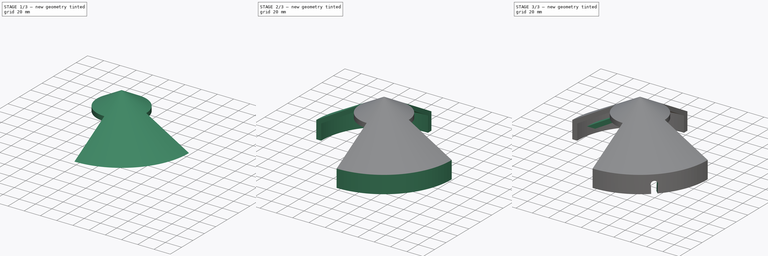
[diagram: build sequence overview — one tinted view per stage of 3, left to right]
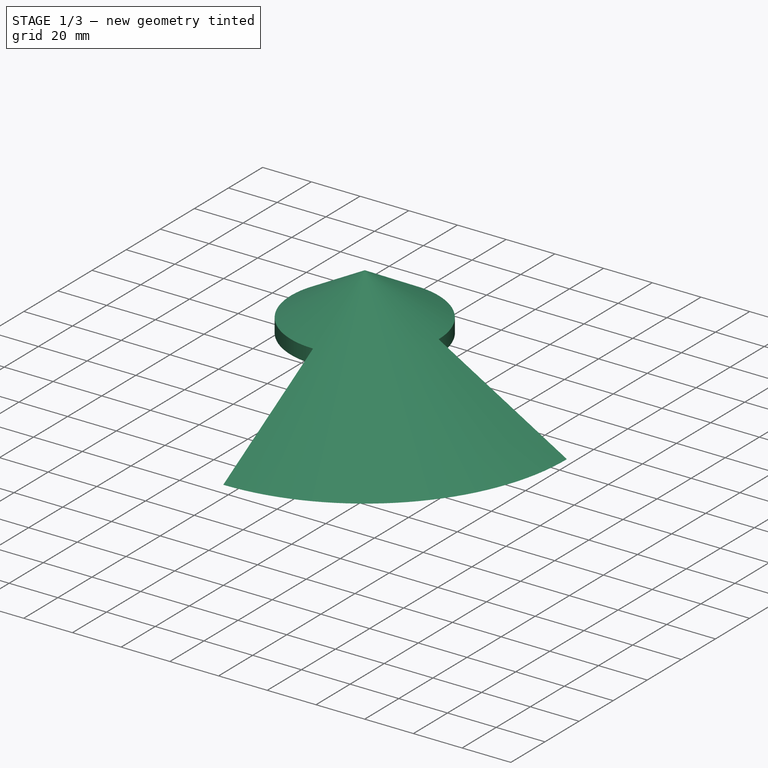
[diagram: stage 1 of 3 — iso view after this stage's code; geometry added in this stage tinted green]
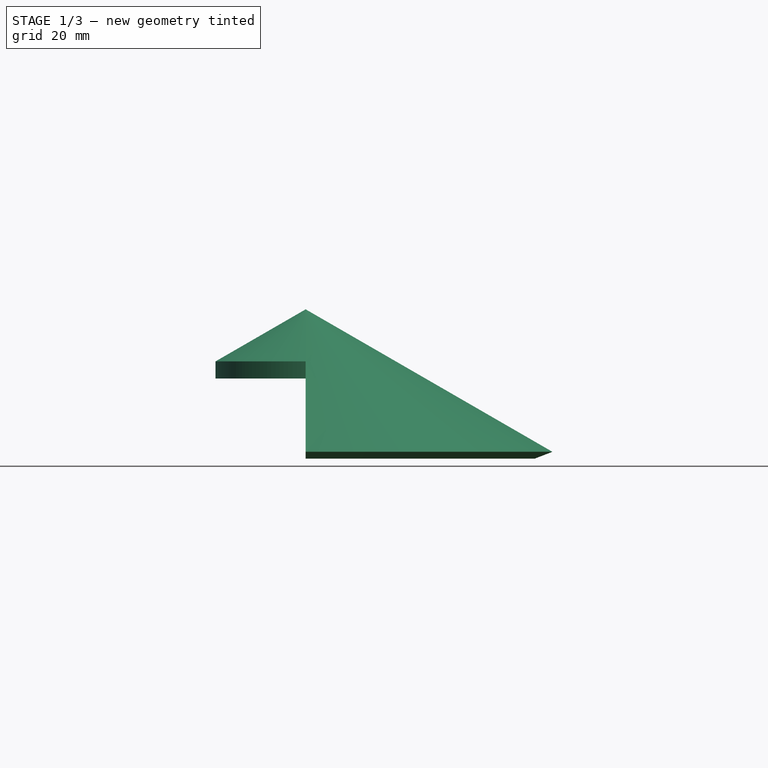
[diagram: stage 1 of 3 — front view after this stage's code; geometry added in this stage tinted green]
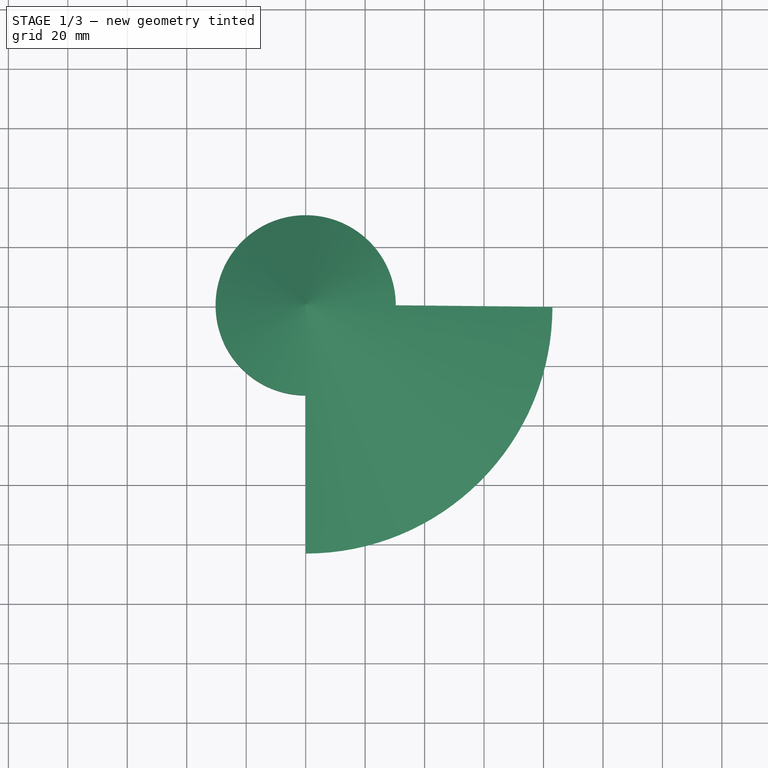
[diagram: stage 1 of 3 — top view after this stage's code; geometry added in this stage tinted green]
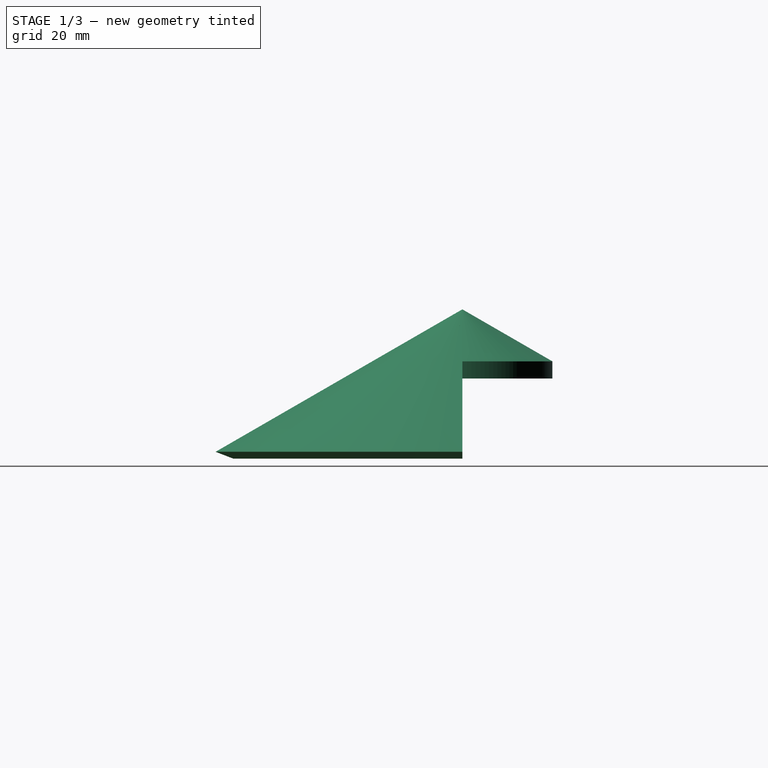
[diagram: stage 1 of 3 — right view after this stage's code; geometry added in this stage tinted green]
FCSTD DOCUMENT  (FreeCAD 1.0R39285 (Git))
Label: 2_Чехол для бура
License: All rights reserved
LicenseURL: https://en.wikipedia.org/wiki/All_rights_reserved
objects: Sketcher::SketchObject×5, PartDesign::Revolution×2, PartDesign::PolarPattern×2, PartDesign::Plane×2, PartDesign::SubShapeBinder×1, PartDesign::Pad×1, PartDesign::Groove×1, PartDesign::Pocket×1, PartDesign::Body×1
note: 33 computed .brp shape members not serialized (recipe doc carries the construction recipe); baked Part::Feature solids carry a one-line shape summary decoded from their .brp

FEATURE [PartDesign::SubShapeBinder] Binder
  BindCopyOnChange = 0
  BindMode = 0
  ClaimChildren = false
  Context = -> Body [Binder.]
  Fuse = false
  MakeFace = true
  OffsetFill = false
  OffsetIntersection = false
  OffsetJoinType = 0
  OffsetOpenResult = false
  PartialLoad = false
  Refine = true
  Relative = true
  Support = -> [PolarPattern[Face1,Face18]]
  _Version = 2
FEATURE [Sketcher::SketchObject] Sketch
  ArcFitTolerance = 1e-06
  AttachmentSupport = -> [XZ_Plane]
  FullyConstrained = false
  MakeInternals = false
  MapMode = 5
  Placement = pos=(0,0,0) rot=(1,0,0;1.5708rad)
  sketch-geometry (5):
    g0: LineSegment StartX=77 StartY=0 StartZ=0 EndX=83 EndY=2.3094 EndZ=0
    g1: LineSegment StartX=0 StartY=44.456 StartZ=0 EndX=77 EndY=0 EndZ=0
    g2: LineSegment StartX=83 StartY=2.3094 StartZ=0 EndX=0 EndY=50.2295 EndZ=0
    g3: LineSegment [constr] StartX=83 StartY=2.3094 StartZ=0 EndX=83 EndY=-59.0907 EndZ=0
    g4: LineSegment StartX=0 StartY=44.456 StartZ=0 EndX=0 EndY=50.2295 EndZ=0
  constraints (14):
    c: PointOnObject(g0,g-1)
    c: Coincident(g1,g0)
    c: Coincident(g0,g2)
    c: Coincident(g3,g0)
    c: Vertical(g3)
    c: Angle(g2,g3) = 2.0944
    c: Parallel(g1,g2)
    c: DistanceX(g-1,g0) = 77
    c: Distance(g2,g1) = 5
    c: Coincident(g4,g1)
    c: Coincident(g4,g2)
    c: Vertical(g4)
    c: DistanceX(g0,g0) = 6
    c: PointOnObject(g2,g-2)
FEATURE [Sketcher::SketchObject] Sketch001
  ArcFitTolerance = 1e-06
  AttachmentSupport = -> [XZ_Plane]
  ExternalGeometry = -> [Sketch]
  FullyConstrained = true
  MakeInternals = false
  MapMode = 5
  Placement = pos=(0,0,0) rot=(1,0,0;1.5708rad)
  sketch-geometry (3):
    g0: LineSegment StartX=0 StartY=44.456 StartZ=0 EndX=30.3109 EndY=26.956 EndZ=0
    g1: LineSegment StartX=30.3109 StartY=26.956 StartZ=0 EndX=30.3109 EndY=32.7295 EndZ=0
    g2: LineSegment StartX=30.3109 StartY=32.7295 StartZ=0 EndX=0 EndY=50.2295 EndZ=0
  constraints (8):
    c: Coincident(g-3,g0)
    c: Coincident(g0,g1)
    c: Vertical(g1)
    c: Coincident(g1,g2)
    c: Coincident(g2,g-3)
    c: PointOnObject(g1,g-4)
    c: PointOnObject(g0,g-5)
    c: Distance(g2,g2) = 35
FEATURE [PartDesign::Revolution] Revolution
  Angle = 360
  Angle2 = 60
  Axis = (0,2e-16,1)
  Base = (0,0,0)
  Midplane = true
  Placement = pos=(0,0,0) rot=(1,0,0;1.5708rad)
  Profile = -> Sketch001
  ReferenceAxis = -> Sketch001 [V_Axis]
  Refine = true
  Suppressed = false
  Type = 0
FEATURE [PartDesign::Revolution] Revolution001
  Angle = 90
  Angle2 = 60
  Axis = (0,2e-16,1)
  Base = (0,0,0)
  BaseFeature = -> Revolution
  Placement = pos=(0,0,0) rot=(1,0,0;1.5708rad)
  Profile = -> Sketch
  ReferenceAxis = -> Sketch [V_Axis]
  Refine = true
  Reversed = true
  Suppressed = false
  Type = 0
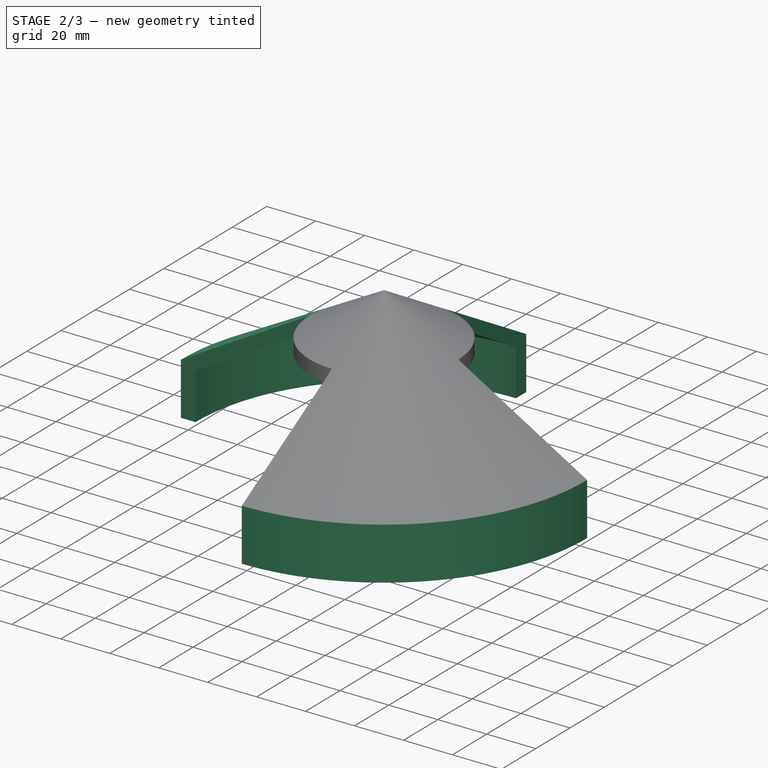
[diagram: stage 2 of 3 — iso view after this stage's code; geometry added in this stage tinted green]
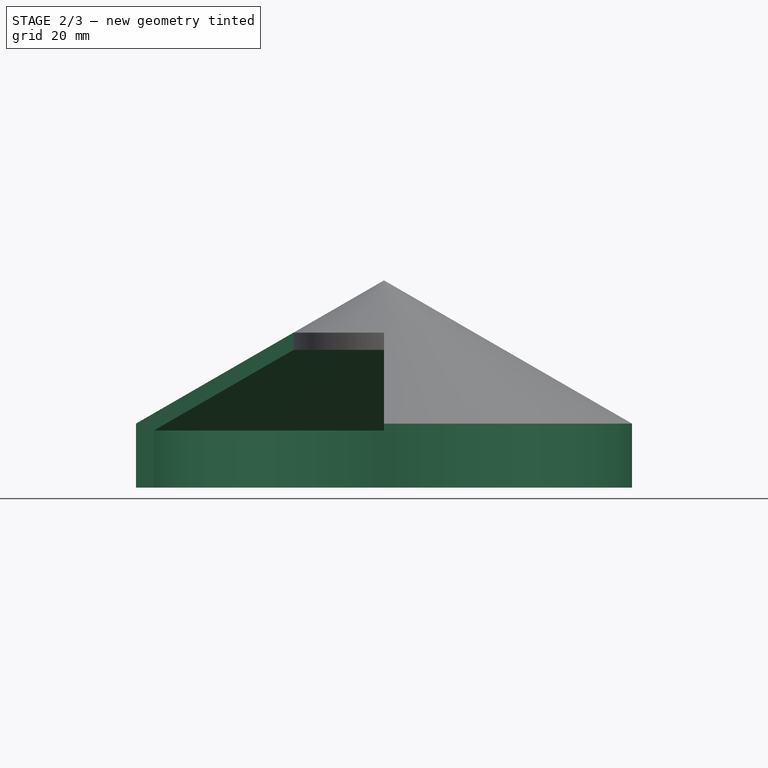
[diagram: stage 2 of 3 — front view after this stage's code; geometry added in this stage tinted green]
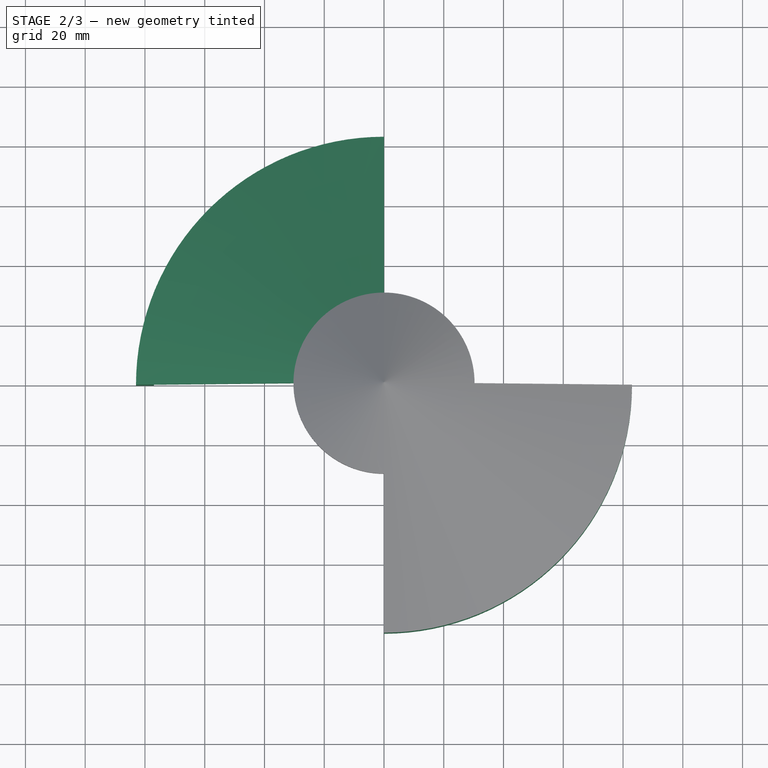
[diagram: stage 2 of 3 — top view after this stage's code; geometry added in this stage tinted green]
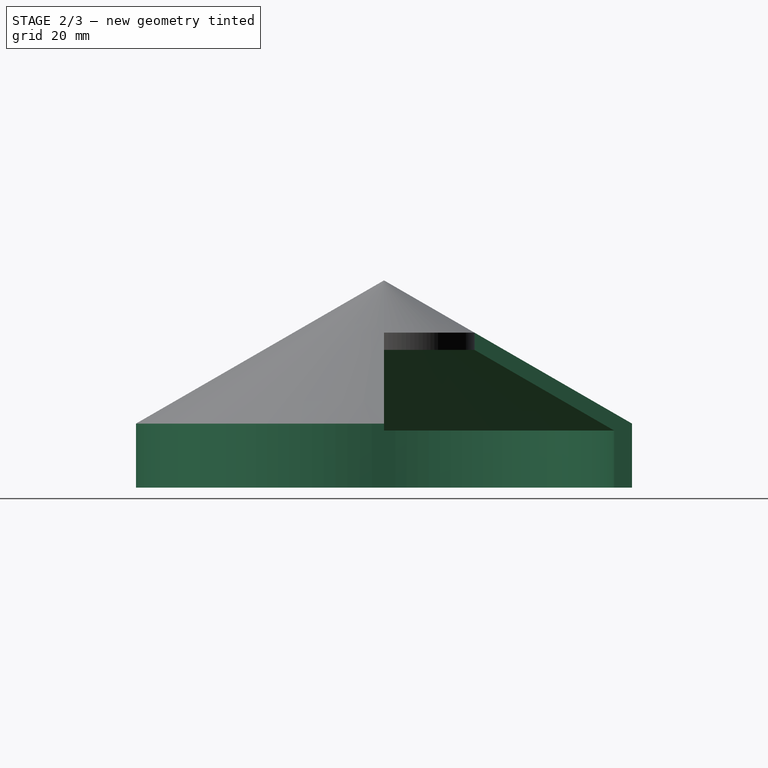
[diagram: stage 2 of 3 — right view after this stage's code; geometry added in this stage tinted green]
FEATURE [PartDesign::PolarPattern] PolarPattern
  Angle = 360
  Axis = -> Y_Axis
  BaseFeature = -> Revolution001
  Mode = 0
  Occurrences = 2
  Offset = 120
  Originals = -> [Revolution001]
  Placement = pos=(0,0,0) rot=(1,0,0;1.5708rad)
  Refine = true
  Suppressed = false
  TransformMode = 0
FEATURE [PartDesign::Pad] Pad
  BaseFeature = -> PolarPattern
  Direction = (1e-16,1e-16,-1)
  Length = 20
  Length2 = 10
  Placement = pos=(0,0,0) rot=(1,0,0;1.5708rad)
  Profile = -> PolarPattern [Face1,Face18]
  ReferenceAxis = -> Y_Axis
  Refine = true
  Suppressed = false
  Type = 0
FEATURE [PartDesign::Plane] DatumPlane
  AttachmentOffset = pos=(0,0,-167) rot=(0,-1,0;0.785398rad)
  AttachmentSupport = -> [YZ_Plane]
  Length = 262.085
  MapMode = 5
  Placement = pos=(-167,0,0) rot=(0.862856,0.357407,0.357407;1.71777rad)
  ResizeMode = 0
  Width = 101.848
FEATURE [Sketcher::SketchObject] Sketch002
  ArcFitTolerance = 1e-06
  AttachmentSupport = -> [DatumPlane]
  FullyConstrained = true
  MakeInternals = false
  MapMode = 5
  Placement = pos=(-167,0,0) rot=(0.862856,0.357407,0.357407;1.71777rad)
FEATURE [Sketcher::SketchObject] Sketch003
  ArcFitTolerance = 1e-06
  AttachmentSupport = -> [Pad]
  ExternalGeometry = -> [Pad]
  FullyConstrained = false
  MakeInternals = false
  MapMode = 5
  Placement = pos=(7.2e-15,0,0) rot=(0.707107,0,-0.707107;3.14159rad)
  sketch-geometry (7):
    g0: LineSegment [constr] StartX=19.1209 StartY=-128.572 StartZ=0 EndX=83.3772 EndY=-128.572 EndZ=0
    g1: LineSegment StartX=83.3772 StartY=111.506 StartZ=0 EndX=19.1209 EndY=111.506 EndZ=0
    g2: LineSegment StartX=19.1209 StartY=0 StartZ=0 EndX=83.3772 EndY=0 EndZ=0
    g3: LineSegment [constr] StartX=83.3772 StartY=-128.572 StartZ=0 EndX=83.3772 EndY=0 EndZ=0
    g4: LineSegment StartX=83.3772 StartY=0 StartZ=0 EndX=83.3772 EndY=111.506 EndZ=0
    g5: LineSegment StartX=19.1209 StartY=111.506 StartZ=0 EndX=19.1209 EndY=0 EndZ=0
    g6: LineSegment [constr] StartX=19.1209 StartY=0 StartZ=0 EndX=19.1209 EndY=-128.572 EndZ=0
  constraints (17):
    c: Coincident(g6,g0)
    c: Coincident(g0,g3)
    c: Coincident(g4,g1)
    c: Coincident(g1,g5)
    c: Horizontal(g0)
    c: Horizontal(g1)
    c: Horizontal(g2)
    c: PointOnObject(g2,g-1)
    c: Coincident(g3,g4)
    c: Vertical(g3)
    c: Vertical(g4)
    c: Coincident(g5,g6)
    c: Vertical(g5)
    c: Vertical(g6)
    c: PointOnObject(g-4,g6)
    c: Coincident(g3,g2)
    c: Coincident(g2,g5)
FEATURE [PartDesign::Groove] Groove
  Angle = 360
  Angle2 = 60
  Axis = (1e-16,1e-16,-1)
  Base = (0,0,0)
  BaseFeature = -> Pad
  Placement = pos=(0,0,0) rot=(1,0,0;1.5708rad)
  Profile = -> Sketch003
  ReferenceAxis = -> Y_Axis
  Refine = true
  Suppressed = false
  Type = 0
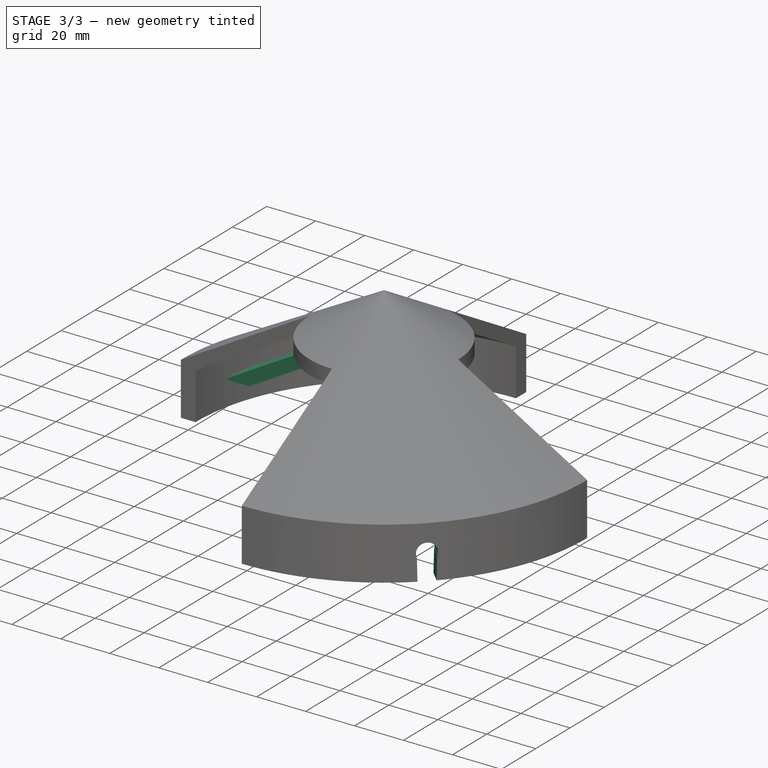
[diagram: stage 3 of 3 — iso view after this stage's code; geometry added in this stage tinted green]
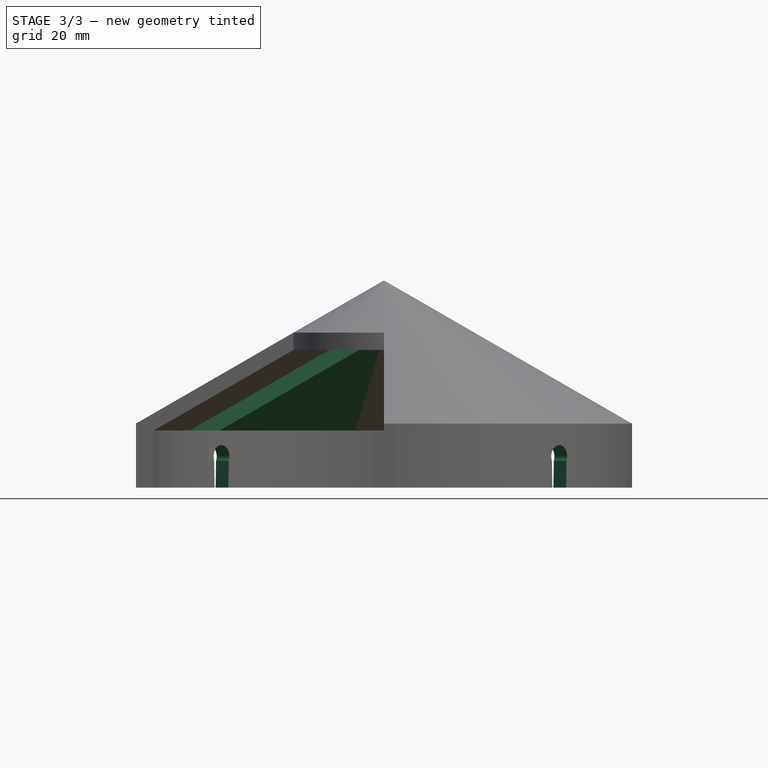
[diagram: stage 3 of 3 — front view after this stage's code; geometry added in this stage tinted green]
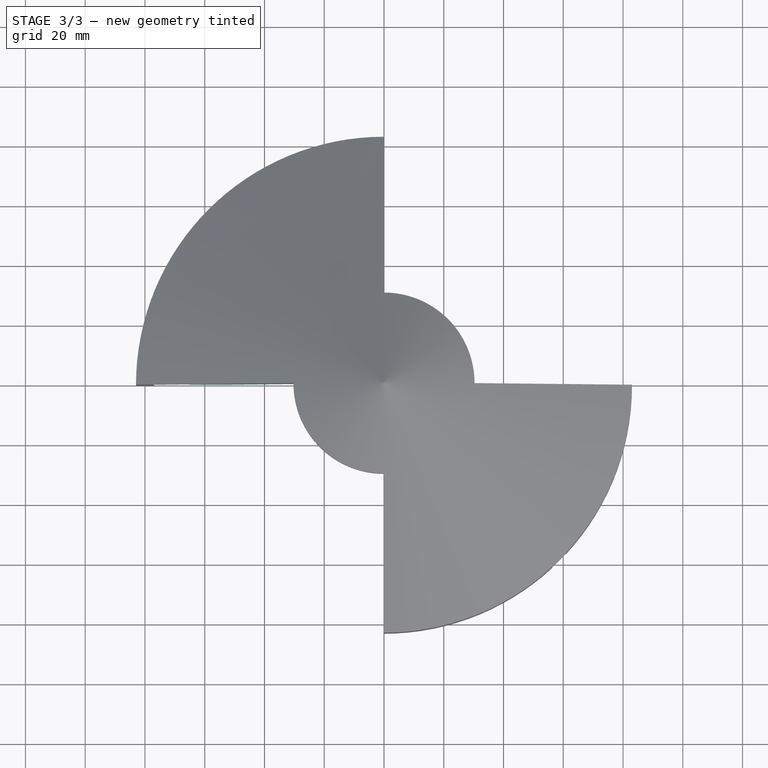
[diagram: stage 3 of 3 — top view after this stage's code; geometry added in this stage tinted green]
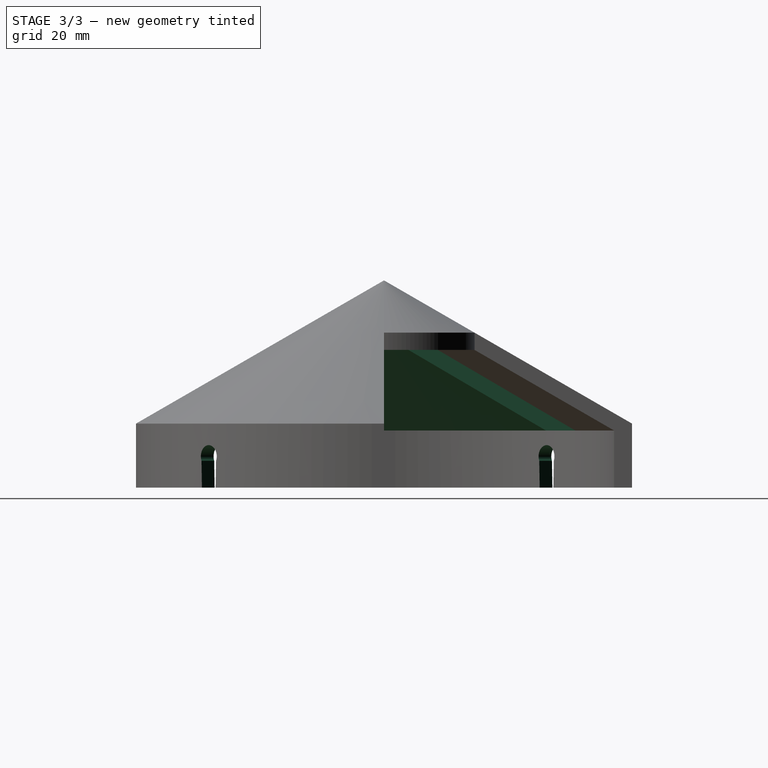
[diagram: stage 3 of 3 — right view after this stage's code; geometry added in this stage tinted green]
FEATURE [PartDesign::PolarPattern] PolarPattern001
  Angle = 360
  Axis = -> Y_Axis
  BaseFeature = -> PolarPattern
  Mode = 0
  Occurrences = 2
  Offset = 120
  Placement = pos=(0,0,0) rot=(1,0,0;1.5708rad)
  Refine = true
  Suppressed = false
  TransformMode = 0
FEATURE [PartDesign::Plane] DatumPlane001
  AttachmentOffset = pos=(0,0,-129) rot=(0,1,0;3.92699rad)
  AttachmentSupport = -> [XZ_Plane]
  Length = 261.338
  MapMode = 5
  Placement = pos=(0,129,-2.86e-14) rot=(-0.281085,0.678598,0.678598;3.68962rad)
  ResizeMode = 0
  Width = 101.808
FEATURE [Sketcher::SketchObject] Sketch004
  ArcFitTolerance = 1e-06
  AttachmentSupport = -> [DatumPlane001]
  ExternalGeometry = -> [Groove]
  FullyConstrained = false
  MakeInternals = false
  MapMode = 5
  Placement = pos=(0,129,-2.86e-14) rot=(-0.281085,0.678598,0.678598;3.68962rad)
  sketch-geometry (5):
    g0: LineSegment StartX=87.9668 StartY=-19.1209 StartZ=0 EndX=87.7668 EndY=-10.1209 EndZ=0
    g1: LineSegment StartX=94.4668 StartY=-19.1209 StartZ=0 EndX=94.6668 EndY=-10.1209 EndZ=0
    g2: ArcOfCircle CenterX=91.2168 CenterY=-8.65124 CenterZ=0 NormalX=0 NormalY=0 NormalZ=1 AngleXU=0 Radius=3.75 StartAngle=5.88047 EndAngle=9.82749
    g3: LineSegment [constr] StartX=91.2168 StartY=1.86381 StartZ=0 EndX=91.2168 EndY=-19.1209 EndZ=0
    g4: LineSegment StartX=94.4668 StartY=-19.1209 StartZ=0 EndX=87.9668 EndY=-19.1209 EndZ=0
  constraints (14):
    c: PointOnObject(g0,g-3)
    c: PointOnObject(g1,g-3)
    c: DistanceX(g0,g1) = 6.5
    c: DistanceX(g0,g1) = 6.9
    c: Coincident(g2,g0)
    c: Coincident(g2,g1)
    c: Radius(g2) = 3.75
    c: PointOnObject(g2,g3)
    c: Symmetric(g-3,g-3,g3)
    c: Symmetric(g1,g0,g3)
    c: DistanceY(g1,g1) = 9
    c: Horizontal(g1,g0)
    c: Coincident(g4,g1)
    c: Coincident(g4,g0)
FEATURE [PartDesign::Pocket] Pocket
  BaseFeature = -> Groove
  Direction = (0.707107,-0.707107,0)
  Length = 5
  Length2 = 5
  Placement = pos=(0,0,0) rot=(1,0,0;1.5708rad)
  Profile = -> Sketch004
  ReferenceAxis = -> Sketch004 [N_Axis]
  Refine = true
  Suppressed = false
  Type = 1
FEATURE [PartDesign::Body] Body  label="Тело"
  AllowCompound = false
  Group = -> [Sketch,Sketch001,Revolution,Revolution001,PolarPattern,PolarPattern001,Binder,Pad,DatumPlane,Sketch002,Sketch003,Groove,DatumPlane001,Sketch004,Pocket]
  Origin = -> Origin
  Tip = -> Pocket
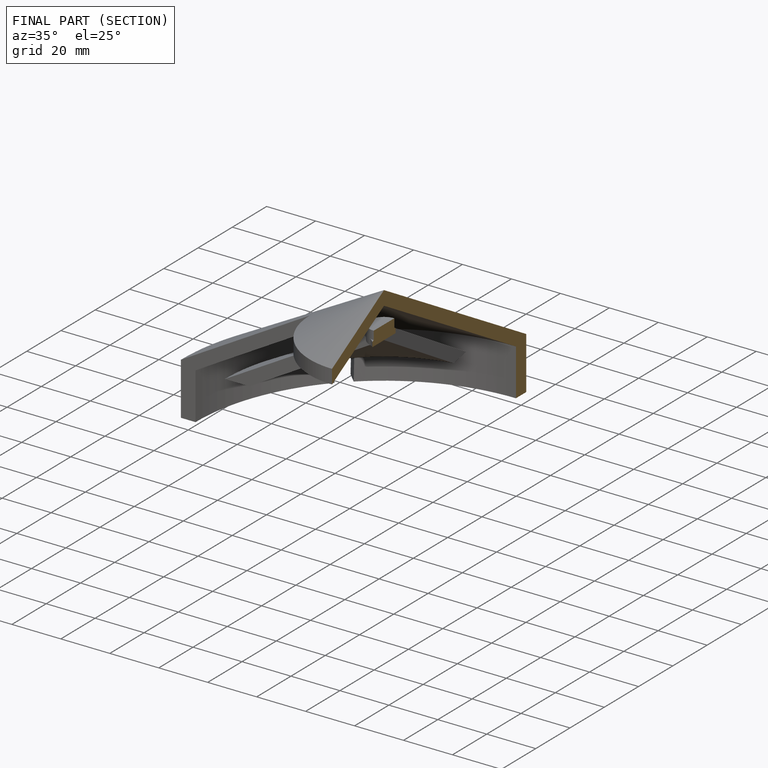
[diagram: finished part — half-section view (interior)]
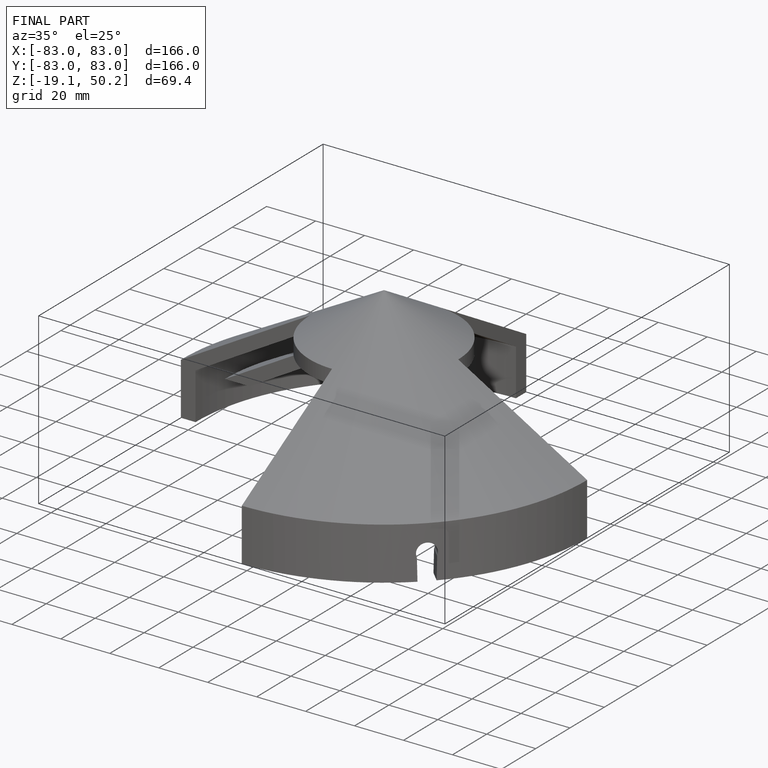
[diagram: finished part — iso view with bounding-box wireframe]
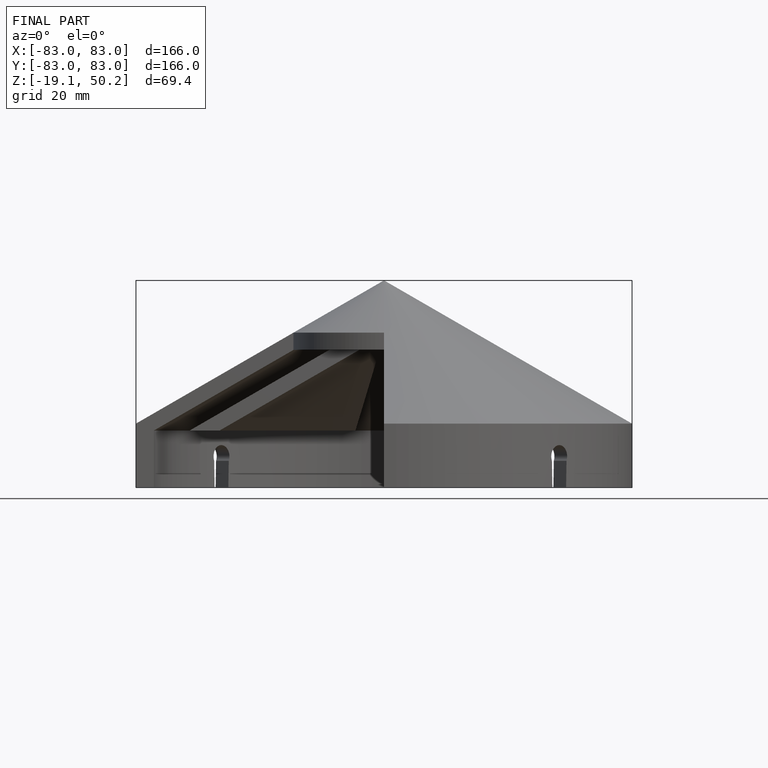
[diagram: finished part — front view with bounding-box wireframe]
